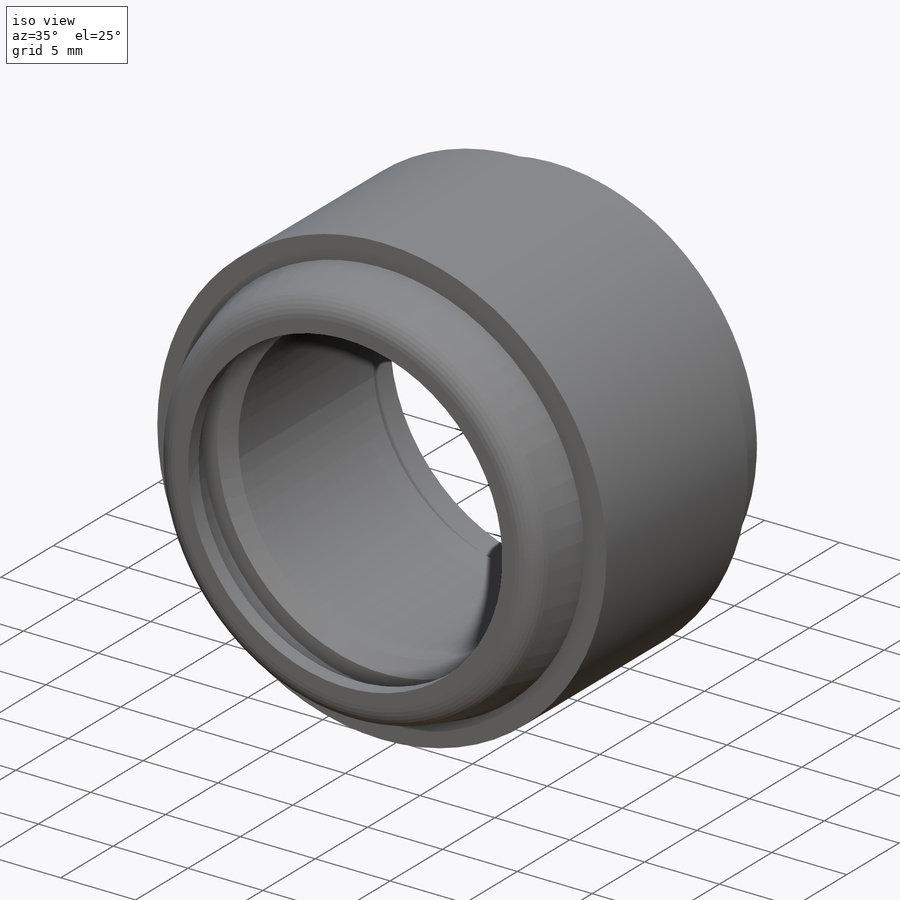
[diagram: iso view]
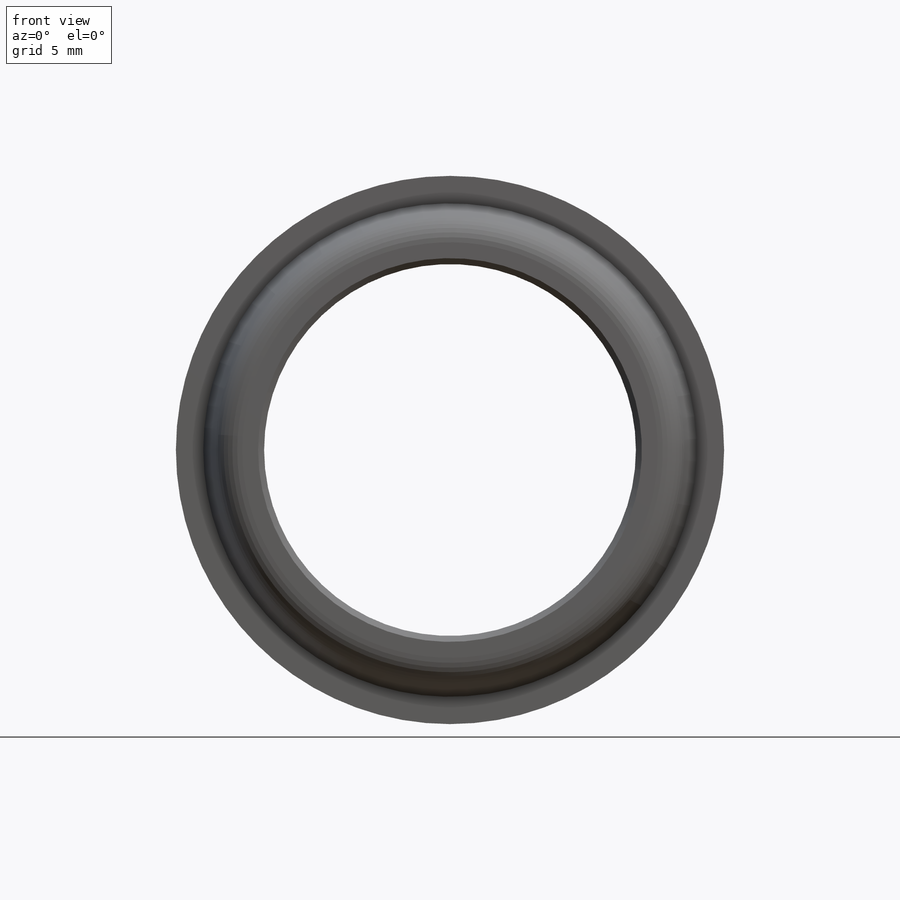
[diagram: front view]
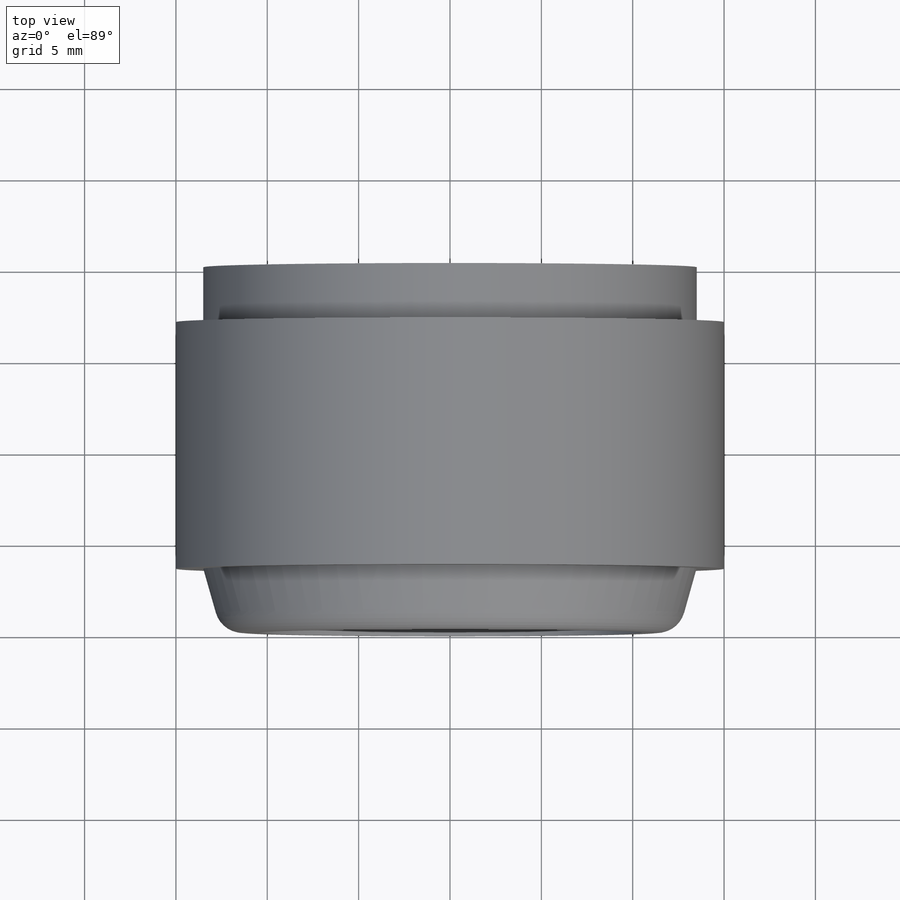
[diagram: top view]
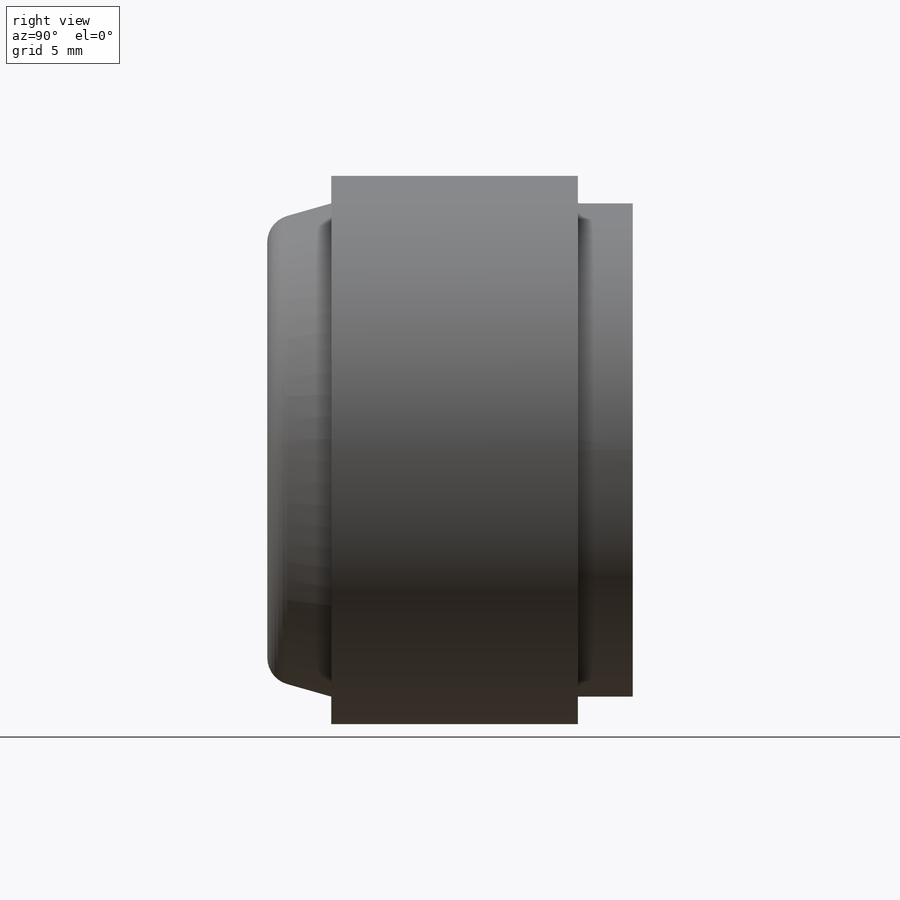
[diagram: right view]
SOLIDWORKS PART (.sldprt)
format: sldprt  version: not decoded by parser v0  size: 376,320 bytes
history: native  units: mm
features: sketch x5, plane x3, extrude x2, cut_extrude x2, material x1, revolve x1, fillet x1, thread x1, chamfer x1 (+9 scaffold rows collapsed)
feature tree (26):
  scaffold x9  (default folders/planes/origin — collapsed)
  material  "Сталь"
  plane  "Спереди"
  plane  "Сверху"
  plane  "Справа"
  sketch  "Эскиз2"  dims[D1=27.0mm]
  extrude  "Бобышка-Вытянуть1"  Depth=3mm
  sketch  "Эскиз3"  dims[D1=30.0mm]
  extrude  "Бобышка-Вытянуть2"  Depth=13.5mm
  sketch  "Эскиз4"  dims[D1=22.0mm]
  cut_extrude  "Вырез-Вытянуть1"  Depth=2mm
  sketch  "Эскиз6"  dims[D8=0.5mm D1=1.5mm D2=15.0mm D3=2.5mm D4=3.5mm D5=4.5mm D6=1.0mm D7=12.0mm]
  revolve  "Повернуть1"  Angle=360deg
  fillet  "Скругление1"  Radius=1.5mm
  sketch  "Эскиз7"  dims[D1=20.344mm]
  cut_extrude  "Вырез-Вытянуть2"  [1 undecoded]
  thread  "Условное изображение резьбы1"  Diameter=14.5mm  [1 undecoded]
  chamfer  "Фаска1"  Distance=0.828mm Angle=45deg
decode coverage: 12 of 13 modeling features carry decoded parameters
note: 2 parameter values undecoded
note: suppression state not decoded; provenance and decode notes live in map.json
